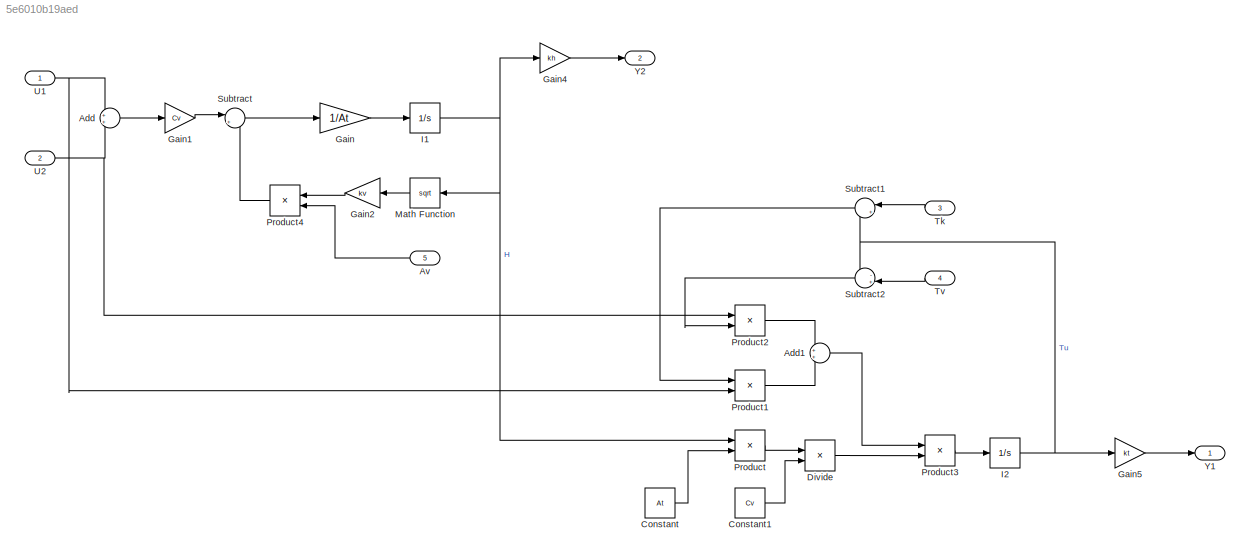
MODEL slx_5e6010b19aed
KIND model
CONFIG AbsTol = auto
CONFIG EnableMultiTasking = off
CONFIG FixedStep = STEP_SIZE
CONFIG MaxStep = auto
CONFIG MinStep = auto
CONFIG RelTol = 1e-3
CONFIG SampleTimeConstraint = Unconstrained
CONFIG SolverName = ode4
CONFIG StartTime = 0.0
CONFIG StopTime = SIM_TIME
BLOCK [Sum] Add
  NameLocation = top
  Ports = [2, 1]
BLOCK [Sum] Add1
  NameLocation = top
  Ports = [2, 1]
BLOCK [Inport] Av
  Port = 5
BLOCK [Constant] Constant
  Value = At
BLOCK [Constant] Constant1
  NameLocation = top
  Value = Cv
BLOCK [Product] Divide
  Inputs = /*
  Ports = [2, 1]
BLOCK [Gain] Gain
  Gain = 1/At
BLOCK [Gain] Gain1
  Gain = Cv
  NameLocation = top
BLOCK [Gain] Gain2
  Gain = kv
BLOCK [Gain] Gain4
  Gain = kh
BLOCK [Gain] Gain5
  Gain = kt
BLOCK [Integrator] I1
  InitialCondition = x0(1)
  LimitOutput = on
  LowerSaturationLimit = 0
  Ports = [1, 1]
  Priority = 1
BLOCK [Integrator] I2
  InitialCondition = x0(2)
  Ports = [1, 1]
  Priority = 2
BLOCK [Math] Math Function
  Operator = sqrt
  Ports = [1, 1]
  SignedPower = on
BLOCK [Product] Product
  Ports = [2, 1]
  RndMeth = Zero
BLOCK [Product] Product1
  Ports = [2, 1]
  RndMeth = Zero
BLOCK [Product] Product2
  NameLocation = top
  Ports = [2, 1]
  RndMeth = Zero
BLOCK [Product] Product3
  Ports = [2, 1]
  RndMeth = Zero
BLOCK [Product] Product4
  Ports = [2, 1]
  RndMeth = Zero
BLOCK [Sum] Subtract
  Inputs = |+-
  Ports = [2, 1]
BLOCK [Sum] Subtract1
  Inputs = |+-
  NameLocation = top
  Ports = [2, 1]
BLOCK [Sum] Subtract2
  Inputs = -+|
  NameLocation = top
  Ports = [2, 1]
BLOCK [Inport] Tk
  Port = 3
BLOCK [Inport] Tv
  Port = 4
BLOCK [Inport] U1
BLOCK [Inport] U2
  Port = 2
BLOCK [Outport] Y1
  VectorParamsAs1DForOutWhenUnconnected = off
BLOCK [Outport] Y2
  Port = 2
  VectorParamsAs1DForOutWhenUnconnected = off
LINE Add1:1 -> Product3:1
LINE Add:1 -> Gain1:1
LINE Av:1 -> Product4:2
LINE Constant1:1 -> Divide:2
LINE Constant:1 -> Product:2
LINE Divide:1 -> Product3:2
LINE Gain1:1 -> Subtract:1
LINE Gain2:1 -> Product4:1
LINE Gain4:1 -> Y2:1
LINE Gain5:1 -> Y1:1
LINE Gain:1 -> I1:1
NET I1:1 -> Gain4:1, Math Function:1, Product:1
NET I2:1 -> Gain5:1, Subtract1:2, Subtract2:1
LINE Math Function:1 -> Gain2:1
LINE Product1:1 -> Add1:2
LINE Product2:1 -> Add1:1
LINE Product3:1 -> I2:1
LINE Product4:1 -> Subtract:2
LINE Product:1 -> Divide:1
LINE Subtract1:1 -> Product1:1
LINE Subtract2:1 -> Product2:2
LINE Subtract:1 -> Gain:1
LINE Tk:1 -> Subtract1:1
LINE Tv:1 -> Subtract2:2
NET U1:1 -> Add:1, Product1:2
NET U2:1 -> Add:2, Product2:1
note: NET lines group one-source signal fan-out (src -> all destinations, sorted); 1:1 wires keep LINE
